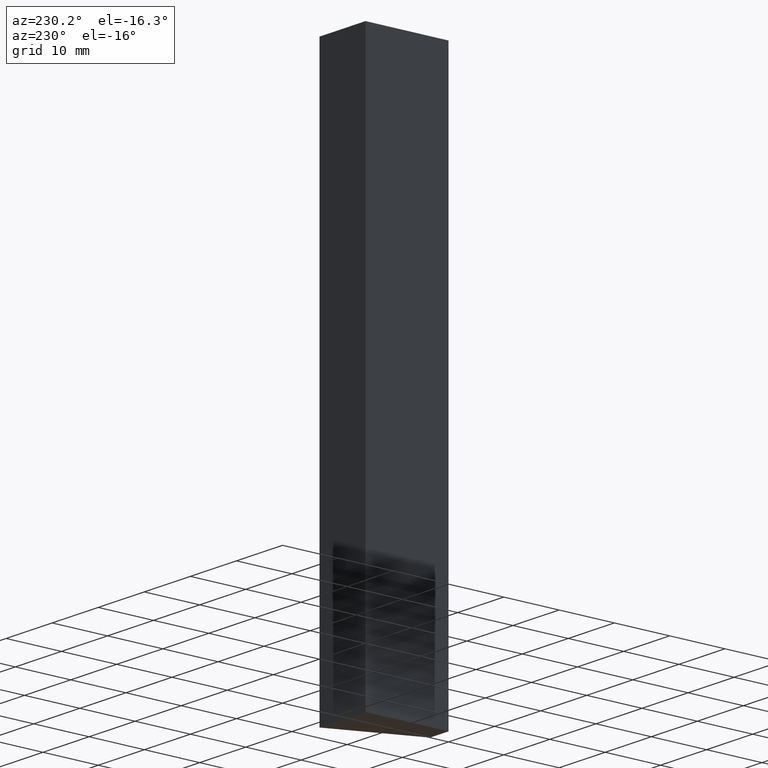
[diagram: clean part render]
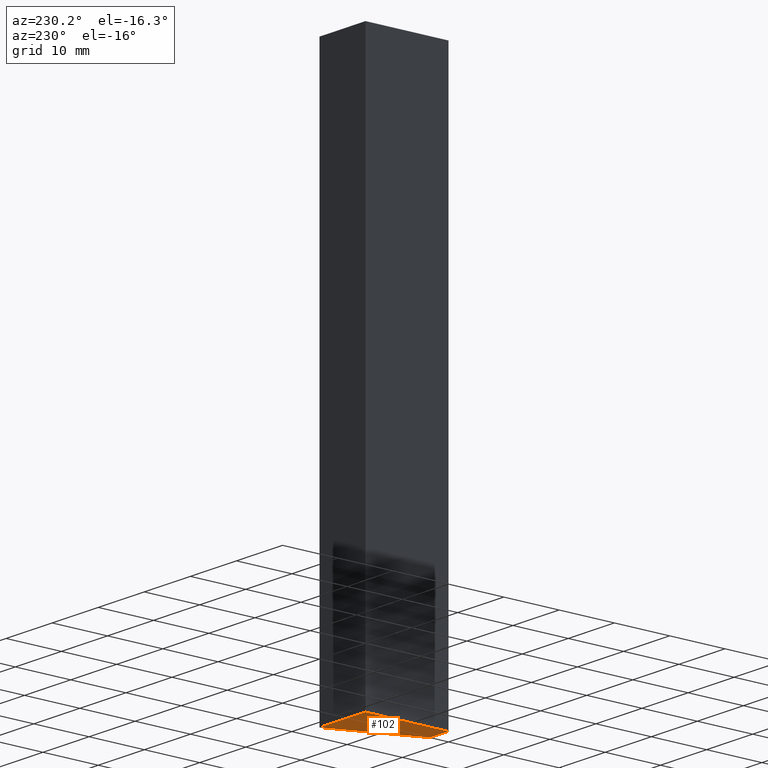
[diagram: same view with one face highlighted and labeled with its STEP entity id]
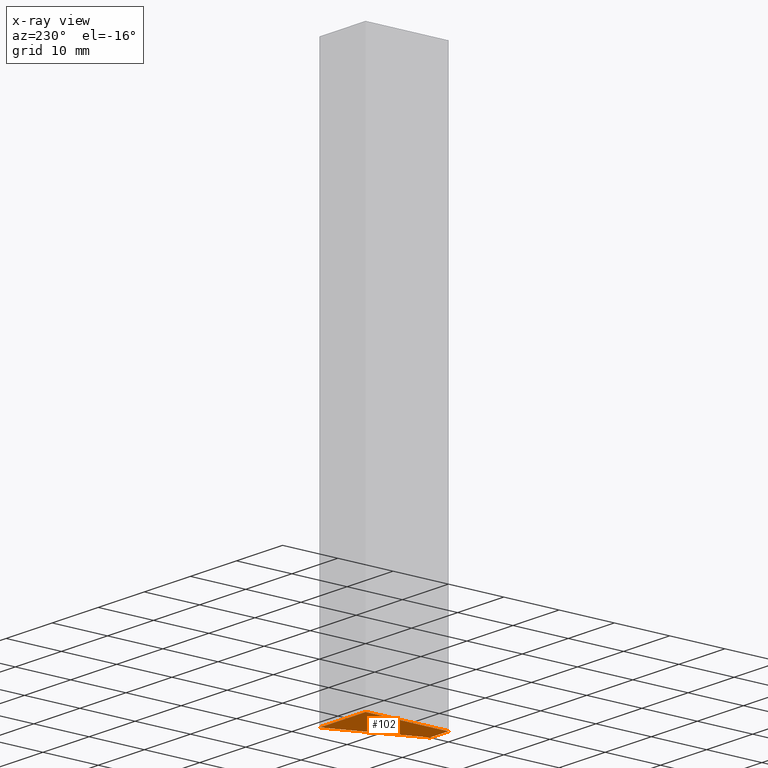
[diagram: x-ray of the same camera — body ghosted, the highlighted face saturated]
A machine part, auxiliary view. The second image highlights one B-rep face of the part: STEP entity #102.
The next image is the same camera in x-ray: the body ghosted, the highlighted face saturated — about 0% of this face is hidden behind the body in this view.
In plain terms, the highlighted planar face has unit normal (0, 0, 1).
Its self-contained STEP definition (entity closure, byte-faithful):
#16=FACE_OUTER_BOUND('',#22,.T.);
#22=EDGE_LOOP('',(#72,#73,#74,#75));
#28=LINE('',#164,#40);
#29=LINE('',#166,#41);
#30=LINE('',#168,#42);
#31=LINE('',#169,#43);
#40=VECTOR('',#138,10.);
#41=VECTOR('',#139,10.);
#42=VECTOR('',#140,10.);
#43=VECTOR('',#141,10.);
#52=VERTEX_POINT('',#162);
#53=VERTEX_POINT('',#163);
#54=VERTEX_POINT('',#165);
#55=VERTEX_POINT('',#167);
#60=EDGE_CURVE('',#52,#53,#28,.T.);
#61=EDGE_CURVE('',#54,#52,#29,.T.);
#62=EDGE_CURVE('',#55,#54,#30,.T.);
#63=EDGE_CURVE('',#53,#55,#31,.T.);
#72=ORIENTED_EDGE('',*,*,#60,.F.);
#73=ORIENTED_EDGE('',*,*,#61,.F.);
#74=ORIENTED_EDGE('',*,*,#62,.F.);
#75=ORIENTED_EDGE('',*,*,#63,.F.);
#96=PLANE('',#128);
#102=ADVANCED_FACE('',(#16),#96,.F.);
#128=AXIS2_PLACEMENT_3D('',#161,#136,#137);
#136=DIRECTION('center_axis',(0.,0.,1.));
#137=DIRECTION('ref_axis',(1.,0.,0.));
#138=DIRECTION('',(0.371390676354103,0.928476690885259,0.));
#139=DIRECTION('',(1.,2.77555756156289E-16,0.));
#140=DIRECTION('',(2.03540887847945E-16,-1.,0.));
#141=DIRECTION('',(-1.,-2.22044604925031E-16,0.));
#161=CARTESIAN_POINT('Origin',(3.78887360535088,8.4965564673049,-50.));
#162=CARTESIAN_POINT('',(4.,-1.11022302462516E-15,-50.));
#163=CARTESIAN_POINT('',(10.,15.,-50.));
#164=CARTESIAN_POINT('',(10.,15.,-50.));
#165=CARTESIAN_POINT('',(2.22044604925031E-15,-2.22044604925031E-15,-50.));
#166=CARTESIAN_POINT('',(4.,-1.11022302462516E-15,-50.));
#167=CARTESIAN_POINT('',(-8.32667268468867E-16,15.,-50.));
#168=CARTESIAN_POINT('',(2.22044604925031E-15,-2.22044604925031E-15,-50.));
#169=CARTESIAN_POINT('',(-8.32667268468867E-16,15.,-50.));